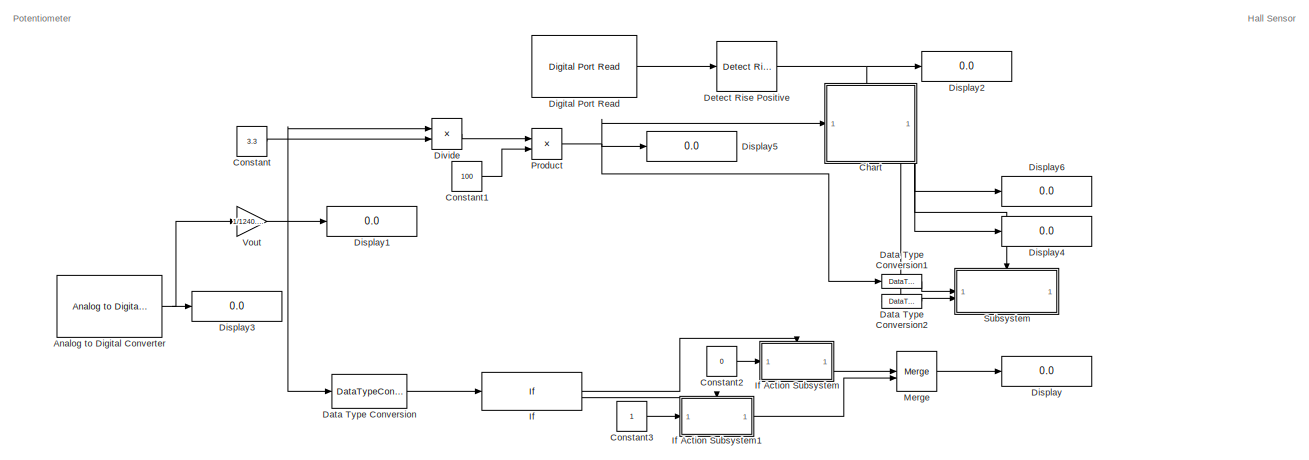
[diagram: root canvas - part 1/4, top left region]
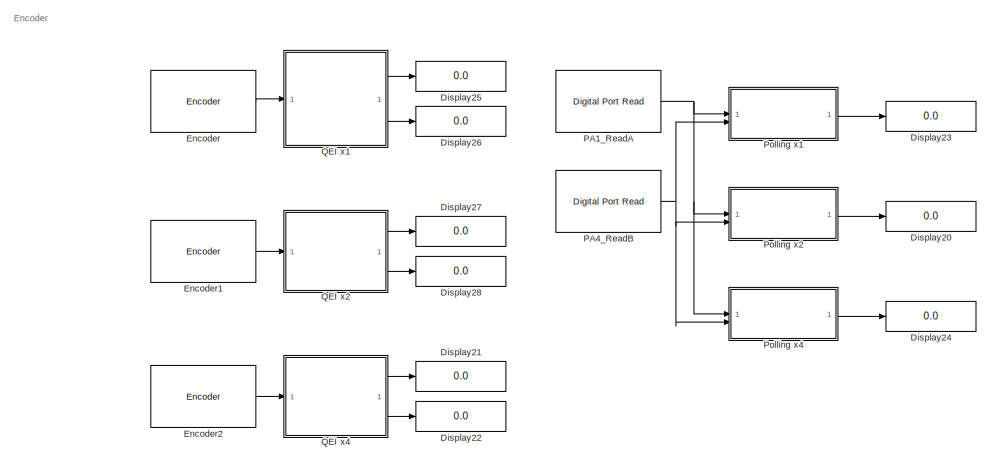
[diagram: root canvas - part 2/4, top right region]
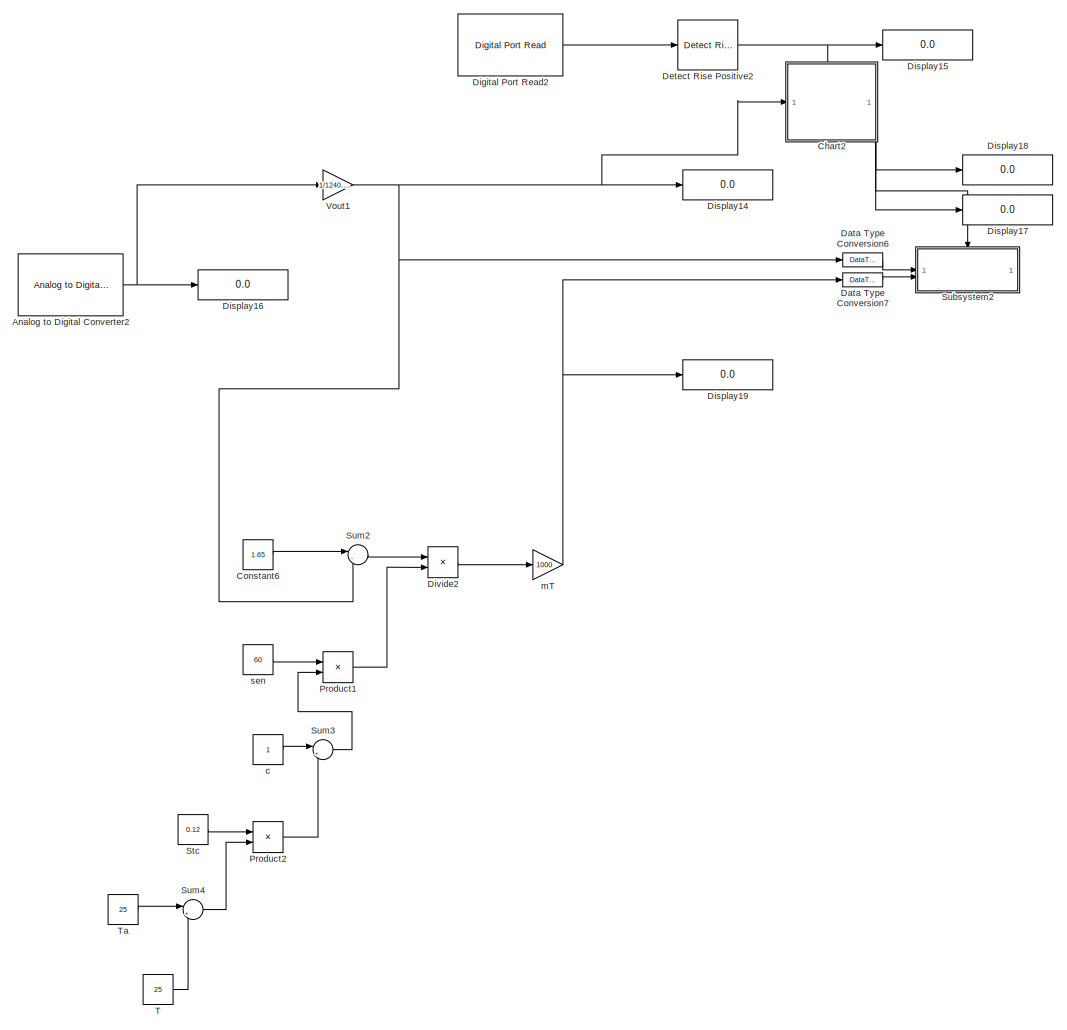
[diagram: root canvas - part 3/4, center side, full height]
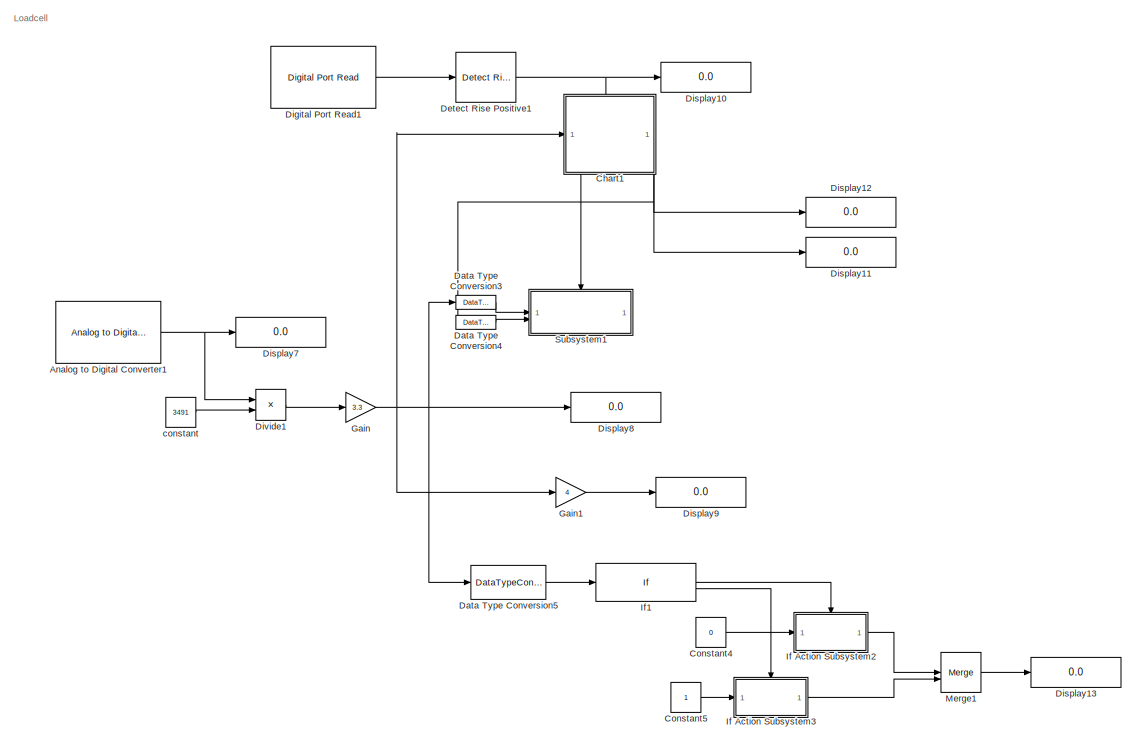
[diagram: root canvas - part 4/4, bottom left region]
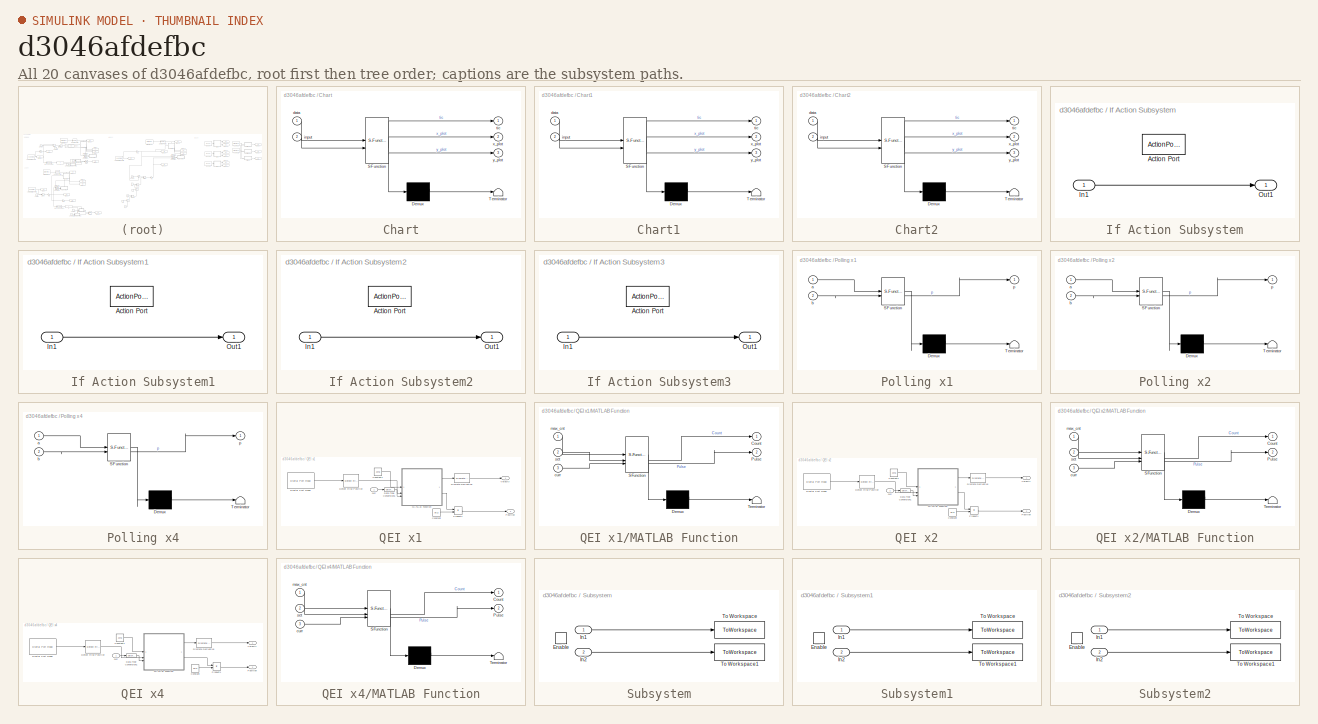
[diagram: thumbnail index - all 20 canvases of the model, root first then tree order]
MODEL slx_d3046afdefbc
KIND model
CONFIG AbsTol = auto
CONFIG EnableMultiTasking = on
CONFIG FixedStep = 0.001
CONFIG MaxStep = auto
CONFIG MinStep = auto
CONFIG RelTol = 1e-3
CONFIG SampleTimeConstraint = Unconstrained
CONFIG SolverName = FixedStepAuto
CONFIG StartTime = 0.0
CONFIG StopTime = inf
BLOCK [Reference] Analog to Digital Converter  REF=stm32f4xxblockslib/Analog to Digital Converter
  Commented = on
  LibrarySourceBlock = stm32g4xxblockslib/Analog to Digital Converter
  SourceBlock = stm32f4xxblockslib/Analog to Digital Converter
  SourceType = stm32cube.blocks.AnalogInput
BLOCK [Reference] Analog to Digital Converter1  REF=stm32f4xxblockslib/Analog to Digital Converter
  Commented = on
  LibrarySourceBlock = stm32g4xxblockslib/Analog to Digital Converter
  SourceBlock = stm32f4xxblockslib/Analog to Digital Converter
  SourceType = stm32cube.blocks.AnalogInput
BLOCK [Reference] Analog to Digital Converter2  REF=stm32f4xxblockslib/Analog to Digital Converter
  Commented = on
  LibrarySourceBlock = stm32g4xxblockslib/Analog to Digital Converter
  SourceBlock = stm32f4xxblockslib/Analog to Digital Converter
  SourceType = stm32cube.blocks.AnalogInput
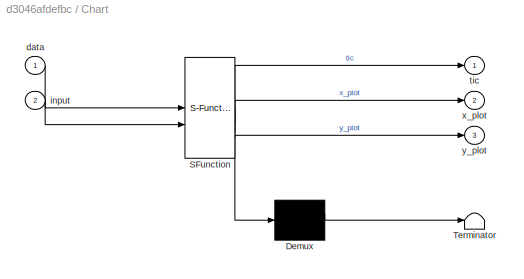
BLOCK [SubSystem] Chart
  Commented = on
  ErrorFcn = Stateflow.Translate.translate
  PermitHierarchicalResolution = ExplicitOnly
  PortSchema = {"entries":[{"content":{"sides":[{"content":{"connectorIds":["In1"]},"type":"ConnectorPlacement.EquallySpacedRectSide","uuid":"15421bba-938f-45a9-ad39-0fb1dc31f746"},{"content":{"side":"RIGHT"},"type":"ConnectorPlacement.EquallySpacedRectSide","uuid":"6df644a9-cb47-4d86-919b-b55e97b0d3b9"},{"content":{"connectorIds":["In2"],"side":"TOP"},"type":"ConnectorPlacement.EquallySpacedRectSide","uuid":"9f...<+385ch>  <repeated x3 — deduplicated; at blocks: Chart, Chart1, Chart2>
  SFBlockType = Chart
  TreatAsAtomicUnit = on
BLOCK [Demux] Chart/ Demux 
  Outputs = 1
BLOCK [S-Function] Chart/ SFunction 
  EnableBusSupport = on
  FunctionName = sf_sfun
  PortCounts = [2 4]
  SFcnIsStateOwnerBlock = off
  SFunctionDeploymentMode = off
  Tag = Stateflow S-Function 3
BLOCK [Terminator] Chart/ Terminator 
BLOCK [Inport] Chart/data
BLOCK [Inport] Chart/input
  Port = 2
BLOCK [Outport] Chart/tic
BLOCK [Outport] Chart/x_plot
  Port = 2
BLOCK [Outport] Chart/y_plot
  Port = 3
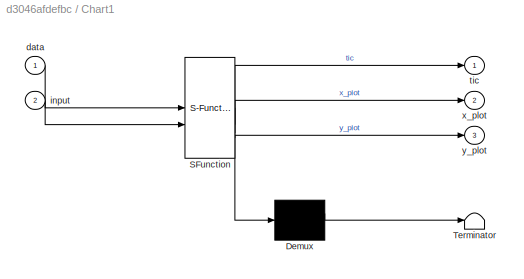
BLOCK [SubSystem] Chart1
  Commented = on
  ErrorFcn = Stateflow.Translate.translate
  PermitHierarchicalResolution = ExplicitOnly
  SFBlockType = Chart
  TreatAsAtomicUnit = on
BLOCK [Demux] Chart1/ Demux 
  Outputs = 1
BLOCK [S-Function] Chart1/ SFunction 
  EnableBusSupport = on
  FunctionName = sf_sfun
  PortCounts = [2 4]
  SFcnIsStateOwnerBlock = off
  SFunctionDeploymentMode = off
  Tag = Stateflow S-Function 1
BLOCK [Terminator] Chart1/ Terminator 
BLOCK [Inport] Chart1/data
BLOCK [Inport] Chart1/input
  Port = 2
BLOCK [Outport] Chart1/tic
BLOCK [Outport] Chart1/x_plot
  Port = 2
BLOCK [Outport] Chart1/y_plot
  Port = 3
BLOCK [SubSystem] Chart2
  Commented = on
  ErrorFcn = Stateflow.Translate.translate
  PermitHierarchicalResolution = ExplicitOnly
  SFBlockType = Chart
  TreatAsAtomicUnit = on
BLOCK [Demux] Chart2/ Demux 
  Outputs = 1
BLOCK [S-Function] Chart2/ SFunction 
  EnableBusSupport = on
  FunctionName = sf_sfun
  PortCounts = [2 4]
  SFcnIsStateOwnerBlock = off
  SFunctionDeploymentMode = off
  Tag = Stateflow S-Function 2
BLOCK [Terminator] Chart2/ Terminator 
BLOCK [Inport] Chart2/data
BLOCK [Inport] Chart2/input
  Port = 2
BLOCK [Outport] Chart2/tic
BLOCK [Outport] Chart2/x_plot
  Port = 2
BLOCK [Outport] Chart2/y_plot
  Port = 3
BLOCK [Constant] Constant
  Commented = on
  Value = 3.3
BLOCK [Constant] Constant1
  Commented = on
  Value = 100
BLOCK [Constant] Constant2
  Commented = on
  Value = 0
BLOCK [Constant] Constant3
  Commented = on
BLOCK [Constant] Constant4
  Commented = on
  Value = 0
BLOCK [Constant] Constant5
  Commented = on
BLOCK [Constant] Constant6
  Commented = on
  Value = 1.65
BLOCK [DataTypeConversion] Data Type Conversion
  Commented = on
  OutDataTypeStr = double
  RndMeth = Floor
  SaturateOnIntegerOverflow = off
BLOCK [DataTypeConversion] Data Type Conversion1
  Commented = on
  OutDataTypeStr = double
  RndMeth = Floor
  SaturateOnIntegerOverflow = off
BLOCK [DataTypeConversion] Data Type Conversion2
  Commented = on
  OutDataTypeStr = double
  RndMeth = Floor
  SaturateOnIntegerOverflow = off
BLOCK [DataTypeConversion] Data Type Conversion3
  Commented = on
  OutDataTypeStr = double
  RndMeth = Floor
  SaturateOnIntegerOverflow = off
BLOCK [DataTypeConversion] Data Type Conversion4
  Commented = on
  OutDataTypeStr = double
  RndMeth = Floor
  SaturateOnIntegerOverflow = off
BLOCK [DataTypeConversion] Data Type Conversion5
  Commented = on
  OutDataTypeStr = double
  RndMeth = Floor
  SaturateOnIntegerOverflow = off
BLOCK [DataTypeConversion] Data Type Conversion6
  Commented = on
  OutDataTypeStr = double
  RndMeth = Floor
  SaturateOnIntegerOverflow = off
BLOCK [DataTypeConversion] Data Type Conversion7
  Commented = on
  OutDataTypeStr = double
  RndMeth = Floor
  SaturateOnIntegerOverflow = off
BLOCK [Reference] Detect Rise Positive  REF=simulink/Logic and Bit
Operations/Detect Rise
Positive
  Commented = on
  SourceBlock = simulink/Logic and Bit\nOperations/Detect Rise\nPositive
  SourceType = Detect Rise Positive
BLOCK [Reference] Detect Rise Positive1  REF=simulink/Logic and Bit
Operations/Detect Rise
Positive
  Commented = on
  SourceBlock = simulink/Logic and Bit\nOperations/Detect Rise\nPositive
  SourceType = Detect Rise Positive
BLOCK [Reference] Detect Rise Positive2  REF=simulink/Logic and Bit
Operations/Detect Rise
Positive
  Commented = on
  SourceBlock = simulink/Logic and Bit\nOperations/Detect Rise\nPositive
  SourceType = Detect Rise Positive
BLOCK [Reference] Digital Port Read  REF=stm32f4xxblockslib/Digital Port Read
  Commented = on
  LibrarySourceBlock = stm32g4xxblockslib/Digital Port Read
  SourceBlock = stm32f4xxblockslib/Digital Port Read
  SourceType = stm32cube.blocks.DigitalPortRead
BLOCK [Reference] Digital Port Read1  REF=stm32f4xxblockslib/Digital Port Read
  Commented = on
  LibrarySourceBlock = stm32g4xxblockslib/Digital Port Read
  SourceBlock = stm32f4xxblockslib/Digital Port Read
  SourceType = stm32cube.blocks.DigitalPortRead
BLOCK [Reference] Digital Port Read2  REF=stm32f4xxblockslib/Digital Port Read
  Commented = on
  LibrarySourceBlock = stm32g4xxblockslib/Digital Port Read
  SourceBlock = stm32f4xxblockslib/Digital Port Read
  SourceType = stm32cube.blocks.DigitalPortRead
BLOCK [Display] Display
  Commented = on
  Decimation = 1
BLOCK [Display] Display1
  Commented = on
  Decimation = 1
BLOCK [Display] Display10
  Commented = on
  Decimation = 1
BLOCK [Display] Display11
  Commented = on
  Decimation = 1
BLOCK [Display] Display12
  Commented = on
  Decimation = 1
BLOCK [Display] Display13
  Commented = on
  Decimation = 1
BLOCK [Display] Display14
  Commented = on
  Decimation = 1
BLOCK [Display] Display15
  Commented = on
  Decimation = 1
BLOCK [Display] Display16
  Commented = on
  Decimation = 1
BLOCK [Display] Display17
  Commented = on
  Decimation = 1
BLOCK [Display] Display18
  Commented = on
  Decimation = 1
BLOCK [Display] Display19
  Commented = on
  Decimation = 1
BLOCK [Display] Display2
  Commented = on
  Decimation = 1
BLOCK [Display] Display20
  Decimation = 1
BLOCK [Display] Display21
  Decimation = 1
BLOCK [Display] Display22
  Decimation = 1
BLOCK [Display] Display23
  Decimation = 1
BLOCK [Display] Display24
  Decimation = 1
BLOCK [Display] Display25
  Decimation = 1
BLOCK [Display] Display26
  Decimation = 1
BLOCK [Display] Display27
  Decimation = 1
BLOCK [Display] Display28
  Decimation = 1
BLOCK [Display] Display3
  Commented = on
  Decimation = 1
BLOCK [Display] Display4
  Commented = on
  Decimation = 1
BLOCK [Display] Display5
  Commented = on
  Decimation = 1
BLOCK [Display] Display6
  Commented = on
  Decimation = 1
BLOCK [Display] Display7
  Commented = on
  Decimation = 1
BLOCK [Display] Display8
  Commented = on
  Decimation = 1
BLOCK [Display] Display9
  Commented = on
  Decimation = 1
BLOCK [Product] Divide
  Commented = on
  Inputs = */
BLOCK [Product] Divide1
  Commented = on
  Inputs = */
BLOCK [Product] Divide2
  Commented = on
  Inputs = */
BLOCK [Reference] Encoder  REF=stm32g4xxblockslib/Encoder
  SourceBlock = stm32g4xxblockslib/Encoder
  SourceType = stm32cube.blocks.EncoderBlockForG4
BLOCK [Reference] Encoder1  REF=stm32g4xxblockslib/Encoder
  SourceBlock = stm32g4xxblockslib/Encoder
  SourceType = stm32cube.blocks.EncoderBlockForG4
BLOCK [Reference] Encoder2  REF=stm32g4xxblockslib/Encoder
  SourceBlock = stm32g4xxblockslib/Encoder
  SourceType = stm32cube.blocks.EncoderBlockForG4
BLOCK [Gain] Gain
  Commented = on
  Gain = 3.3
BLOCK [Gain] Gain1
  Commented = on
  Gain = 4
BLOCK [If] If
  Commented = on
  ElseIfExpressions = u1 >= 1.65
  IfExpression = u1 < 1.65
BLOCK [SubSystem] If Action Subsystem
  Commented = on
  TreatAsAtomicUnit = on
BLOCK [ActionPort] If Action Subsystem/Action Port
  ActionPortLabel = if(u1 < 1.65)
BLOCK [Inport] If Action Subsystem/In1
BLOCK [Outport] If Action Subsystem/Out1
BLOCK [SubSystem] If Action Subsystem1
  Commented = on
  TreatAsAtomicUnit = on
BLOCK [ActionPort] If Action Subsystem1/Action Port
  ActionPortLabel = elseif(u1 >= 1.65)
BLOCK [Inport] If Action Subsystem1/In1
BLOCK [Outport] If Action Subsystem1/Out1
BLOCK [SubSystem] If Action Subsystem2
  Commented = on
  TreatAsAtomicUnit = on
BLOCK [ActionPort] If Action Subsystem2/Action Port
  ActionPortLabel = if(u1 < 1.65)
BLOCK [Inport] If Action Subsystem2/In1
BLOCK [Outport] If Action Subsystem2/Out1
BLOCK [SubSystem] If Action Subsystem3
  Commented = on
  TreatAsAtomicUnit = on
BLOCK [ActionPort] If Action Subsystem3/Action Port
  ActionPortLabel = elseif(u1 >= 1.65)
BLOCK [Inport] If Action Subsystem3/In1
BLOCK [Outport] If Action Subsystem3/Out1
BLOCK [If] If1
  Commented = on
  ElseIfExpressions = u1 >= 1.65
  IfExpression = u1 < 1.65
BLOCK [Merge] Merge
  Commented = on
BLOCK [Merge] Merge1
  Commented = on
BLOCK [Reference] PA1_ReadA  REF=stm32f4xxblockslib/Digital Port Read
  LibrarySourceBlock = stm32g4xxblockslib/Digital Port Read
  SourceBlock = stm32f4xxblockslib/Digital Port Read
  SourceType = stm32cube.blocks.DigitalPortRead
BLOCK [Reference] PA4_ReadB  REF=stm32f4xxblockslib/Digital Port Read
  LibrarySourceBlock = stm32g4xxblockslib/Digital Port Read
  SourceBlock = stm32f4xxblockslib/Digital Port Read
  SourceType = stm32cube.blocks.DigitalPortRead
BLOCK [SubSystem] Polling x1
  ErrorFcn = Stateflow.Translate.translate
  PermitHierarchicalResolution = ExplicitOnly
  SFBlockType = MATLAB Function
  TreatAsAtomicUnit = on
BLOCK [Demux] Polling x1/ Demux 
  Outputs = 1
BLOCK [S-Function] Polling x1/ SFunction 
  EnableBusSupport = on
  FunctionName = sf_sfun
  PortCounts = [2 2]
  SFcnIsStateOwnerBlock = off
  SFunctionDeploymentMode = off
  Tag = Stateflow S-Function 4
BLOCK [Terminator] Polling x1/ Terminator 
BLOCK [Inport] Polling x1/a
BLOCK [Inport] Polling x1/b
  Port = 2
BLOCK [Outport] Polling x1/p
BLOCK [SubSystem] Polling x2
  ErrorFcn = Stateflow.Translate.translate
  PermitHierarchicalResolution = ExplicitOnly
  SFBlockType = MATLAB Function
  TreatAsAtomicUnit = on
BLOCK [Demux] Polling x2/ Demux 
  Outputs = 1
BLOCK [S-Function] Polling x2/ SFunction 
  EnableBusSupport = on
  FunctionName = sf_sfun
  PortCounts = [2 2]
  SFcnIsStateOwnerBlock = off
  SFunctionDeploymentMode = off
  Tag = Stateflow S-Function 5
BLOCK [Terminator] Polling x2/ Terminator 
BLOCK [Inport] Polling x2/a
BLOCK [Inport] Polling x2/b
  Port = 2
BLOCK [Outport] Polling x2/p
BLOCK [SubSystem] Polling x4
  ErrorFcn = Stateflow.Translate.translate
  PermitHierarchicalResolution = ExplicitOnly
  SFBlockType = MATLAB Function
  TreatAsAtomicUnit = on
BLOCK [Demux] Polling x4/ Demux 
  Outputs = 1
BLOCK [S-Function] Polling x4/ SFunction 
  EnableBusSupport = on
  FunctionName = sf_sfun
  PortCounts = [2 2]
  SFcnIsStateOwnerBlock = off
  SFunctionDeploymentMode = off
  Tag = Stateflow S-Function 6
BLOCK [Terminator] Polling x4/ Terminator 
BLOCK [Inport] Polling x4/a
BLOCK [Inport] Polling x4/b
  Port = 2
BLOCK [Outport] Polling x4/p
BLOCK [Product] Product
  Commented = on
BLOCK [Product] Product1
  Commented = on
BLOCK [Product] Product2
  Commented = on
BLOCK [SubSystem] QEI x1
BLOCK [Constant] QEI x1/Constant
  Value = pi/12
BLOCK [Constant] QEI x1/Constant1
  Value = 2048
BLOCK [DataTypeConversion] QEI x1/Data Type Conversion1
  OutDataTypeStr = double
  RndMeth = Floor
  SaturateOnIntegerOverflow = off
BLOCK [Reference] QEI x1/Detect Rise Positive  REF=simulink/Logic and Bit
Operations/Detect Rise
Positive
  SourceBlock = simulink/Logic and Bit\nOperations/Detect Rise\nPositive
  SourceType = Detect Rise Positive
BLOCK [Reference] QEI x1/Digital Port Read  REF=stm32f4xxblockslib/Digital Port Read
  LibrarySourceBlock = stm32g4xxblockslib/Digital Port Read
  SourceBlock = stm32f4xxblockslib/Digital Port Read
  SourceType = stm32cube.blocks.DigitalPortRead
BLOCK [Reference] QEI x1/Discrete Derivative  REF=simulink/Discrete/Discrete Derivative
  SourceBlock = simulink/Discrete/Discrete Derivative
  SourceType = Discrete Derivative
BLOCK [SubSystem] QEI x1/MATLAB Function
  ErrorFcn = Stateflow.Translate.translate
  PermitHierarchicalResolution = ExplicitOnly
  SFBlockType = MATLAB Function
  TreatAsAtomicUnit = on
BLOCK [Demux] QEI x1/MATLAB Function/ Demux 
  Outputs = 1
BLOCK [S-Function] QEI x1/MATLAB Function/ SFunction 
  EnableBusSupport = on
  FunctionName = sf_sfun
  PortCounts = [3 3]
  SFcnIsStateOwnerBlock = off
  SFunctionDeploymentMode = off
  Tag = Stateflow S-Function 7
BLOCK [Terminator] QEI x1/MATLAB Function/ Terminator 
BLOCK [Outport] QEI x1/MATLAB Function/Count
BLOCK [Outport] QEI x1/MATLAB Function/Pulse
  Port = 2
BLOCK [Inport] QEI x1/MATLAB Function/curr
  Port = 3
BLOCK [Inport] QEI x1/MATLAB Function/max_cnt
BLOCK [Inport] QEI x1/MATLAB Function/set
  Port = 2
BLOCK [Outport] QEI x1/Position
  Port = 2
BLOCK [Product] QEI x1/Product1
BLOCK [Outport] QEI x1/Velocity
BLOCK [Inport] QEI x1/curr
BLOCK [SubSystem] QEI x2
BLOCK [Constant] QEI x2/Constant
  Value = pi/12
BLOCK [Constant] QEI x2/Constant1
  Value = 2048
BLOCK [DataTypeConversion] QEI x2/Data Type Conversion1
  OutDataTypeStr = double
  RndMeth = Floor
  SaturateOnIntegerOverflow = off
BLOCK [Reference] QEI x2/Detect Rise Positive  REF=simulink/Logic and Bit
Operations/Detect Rise
Positive
  SourceBlock = simulink/Logic and Bit\nOperations/Detect Rise\nPositive
  SourceType = Detect Rise Positive
BLOCK [Reference] QEI x2/Digital Port Read  REF=stm32f4xxblockslib/Digital Port Read
  SourceBlock = stm32f4xxblockslib/Digital Port Read
  SourceType = stm32cube.blocks.DigitalPortRead
BLOCK [Reference] QEI x2/Discrete Derivative  REF=simulink/Discrete/Discrete Derivative
  SourceBlock = simulink/Discrete/Discrete Derivative
  SourceType = Discrete Derivative
BLOCK [SubSystem] QEI x2/MATLAB Function
  ErrorFcn = Stateflow.Translate.translate
  PermitHierarchicalResolution = ExplicitOnly
  SFBlockType = MATLAB Function
  TreatAsAtomicUnit = on
BLOCK [Demux] QEI x2/MATLAB Function/ Demux 
  Outputs = 1
BLOCK [S-Function] QEI x2/MATLAB Function/ SFunction 
  EnableBusSupport = on
  FunctionName = sf_sfun
  PortCounts = [3 3]
  SFcnIsStateOwnerBlock = off
  SFunctionDeploymentMode = off
  Tag = Stateflow S-Function 8
BLOCK [Terminator] QEI x2/MATLAB Function/ Terminator 
BLOCK [Outport] QEI x2/MATLAB Function/Count
BLOCK [Outport] QEI x2/MATLAB Function/Pulse
  Port = 2
BLOCK [Inport] QEI x2/MATLAB Function/curr
  Port = 3
BLOCK [Inport] QEI x2/MATLAB Function/max_cnt
BLOCK [Inport] QEI x2/MATLAB Function/set
  Port = 2
BLOCK [Outport] QEI x2/Position
  Port = 2
BLOCK [Product] QEI x2/Product1
BLOCK [Outport] QEI x2/Velocity
BLOCK [Inport] QEI x2/curr
BLOCK [SubSystem] QEI x4
BLOCK [Constant] QEI x4/Constant
  Value = pi/12
BLOCK [Constant] QEI x4/Constant1
  Value = 2048
BLOCK [DataTypeConversion] QEI x4/Data Type Conversion1
  OutDataTypeStr = double
  RndMeth = Floor
  SaturateOnIntegerOverflow = off
BLOCK [Reference] QEI x4/Detect Rise Positive  REF=simulink/Logic and Bit
Operations/Detect Rise
Positive
  SourceBlock = simulink/Logic and Bit\nOperations/Detect Rise\nPositive
  SourceType = Detect Rise Positive
BLOCK [Reference] QEI x4/Digital Port Read  REF=stm32f4xxblockslib/Digital Port Read
  SourceBlock = stm32f4xxblockslib/Digital Port Read
  SourceType = stm32cube.blocks.DigitalPortRead
BLOCK [Reference] QEI x4/Discrete Derivative  REF=simulink/Discrete/Discrete Derivative
  SourceBlock = simulink/Discrete/Discrete Derivative
  SourceType = Discrete Derivative
BLOCK [SubSystem] QEI x4/MATLAB Function
  ErrorFcn = Stateflow.Translate.translate
  PermitHierarchicalResolution = ExplicitOnly
  SFBlockType = MATLAB Function
  TreatAsAtomicUnit = on
BLOCK [Demux] QEI x4/MATLAB Function/ Demux 
  Outputs = 1
BLOCK [S-Function] QEI x4/MATLAB Function/ SFunction 
  EnableBusSupport = on
  FunctionName = sf_sfun
  PortCounts = [3 3]
  SFcnIsStateOwnerBlock = off
  SFunctionDeploymentMode = off
  Tag = Stateflow S-Function 9
BLOCK [Terminator] QEI x4/MATLAB Function/ Terminator 
BLOCK [Outport] QEI x4/MATLAB Function/Count
BLOCK [Outport] QEI x4/MATLAB Function/Pulse
  Port = 2
BLOCK [Inport] QEI x4/MATLAB Function/curr
  Port = 3
BLOCK [Inport] QEI x4/MATLAB Function/max_cnt
BLOCK [Inport] QEI x4/MATLAB Function/set
  Port = 2
BLOCK [Outport] QEI x4/Position
  Port = 2
BLOCK [Product] QEI x4/Product1
BLOCK [Outport] QEI x4/Velocity
BLOCK [Inport] QEI x4/curr
BLOCK [Constant] Stc
  Commented = on
  Value = 0.12
BLOCK [SubSystem] Subsystem
  Commented = on
BLOCK [EnablePort] Subsystem/Enable
BLOCK [Inport] Subsystem/In1
BLOCK [Inport] Subsystem/In2
  Port = 2
BLOCK [ToWorkspace] Subsystem/To Workspace
  FixptAsFi = on
  MaxDataPoints = inf
  SampleTime = -1
  Save2DSignal = 2-D array (concatenate along first dimension)
  VariableName = simout1
BLOCK [ToWorkspace] Subsystem/To Workspace1
  FixptAsFi = on
  MaxDataPoints = inf
  SampleTime = -1
  Save2DSignal = 2-D array (concatenate along first dimension)
  VariableName = simout2
BLOCK [SubSystem] Subsystem1
  Commented = on
BLOCK [EnablePort] Subsystem1/Enable
BLOCK [Inport] Subsystem1/In1
BLOCK [Inport] Subsystem1/In2
  Port = 2
BLOCK [ToWorkspace] Subsystem1/To Workspace
  FixptAsFi = on
  MaxDataPoints = inf
  SampleTime = -1
  Save2DSignal = 2-D array (concatenate along first dimension)
  VariableName = simout1
BLOCK [ToWorkspace] Subsystem1/To Workspace1
  FixptAsFi = on
  MaxDataPoints = inf
  SampleTime = -1
  Save2DSignal = 2-D array (concatenate along first dimension)
  VariableName = simout2
BLOCK [SubSystem] Subsystem2
  Commented = on
BLOCK [EnablePort] Subsystem2/Enable
BLOCK [Inport] Subsystem2/In1
BLOCK [Inport] Subsystem2/In2
  Port = 2
BLOCK [ToWorkspace] Subsystem2/To Workspace
  FixptAsFi = on
  MaxDataPoints = inf
  SampleTime = -1
  Save2DSignal = 2-D array (concatenate along first dimension)
  VariableName = simout1
BLOCK [ToWorkspace] Subsystem2/To Workspace1
  FixptAsFi = on
  MaxDataPoints = inf
  SampleTime = -1
  Save2DSignal = 2-D array (concatenate along first dimension)
  VariableName = simout2
BLOCK [Sum] Sum2
  Commented = on
  Inputs = |-+
BLOCK [Sum] Sum3
  Commented = on
  Inputs = |++
BLOCK [Sum] Sum4
  Commented = on
  Inputs = |+-
BLOCK [Constant] T
  Commented = on
  Value = 25
BLOCK [Constant] Ta
  Commented = on
  Value = 25
BLOCK [Gain] Vout
  Commented = on
  Gain = 1/1240.909
BLOCK [Gain] Vout1
  Commented = on
  Gain = 1/1240.909
BLOCK [Constant] c
  Commented = on
BLOCK [Constant] constant
  Commented = on
  Value = 3491
BLOCK [Gain] mT
  Commented = on
  Gain = 1000
BLOCK [Constant] sen
  Commented = on
  Value = 60
ANNOTATION (root): Encoder
ANNOTATION (root): Hall Sensor
ANNOTATION (root): Loadcell
ANNOTATION (root): Potentiometer
NET Analog to Digital Converter1:1 -> Display7:1, Divide1:1
NET Analog to Digital Converter2:1 -> Display16:1, Vout1:1
NET Analog to Digital Converter:1 -> Display3:1, Vout:1
LINE Chart1:1 -> Subsystem1:enable
NET Chart1:2 -> Data Type Conversion4:1, Display11:1
LINE Chart1:3 -> Display12:1
LINE Chart2:1 -> Subsystem2:enable
LINE Chart2:2 -> Display17:1
LINE Chart2:3 -> Display18:1
LINE Chart:1 -> Subsystem:enable
NET Chart:2 -> Data Type Conversion2:1, Display4:1
LINE Chart:3 -> Display6:1
LINE Constant1:1 -> Product:2
LINE Constant2:1 -> If Action Subsystem:1
LINE Constant3:1 -> If Action Subsystem1:1
LINE Constant4:1 -> If Action Subsystem2:1
LINE Constant5:1 -> If Action Subsystem3:1
LINE Constant6:1 -> Sum2:1
LINE Constant:1 -> Divide:2
LINE Data Type Conversion1:1 -> Subsystem:1
LINE Data Type Conversion2:1 -> Subsystem:2
LINE Data Type Conversion3:1 -> Subsystem1:1
LINE Data Type Conversion4:1 -> Subsystem1:2
LINE Data Type Conversion5:1 -> If1:1
LINE Data Type Conversion6:1 -> Subsystem2:1
LINE Data Type Conversion7:1 -> Subsystem2:2
LINE Data Type Conversion:1 -> If:1
NET Detect Rise Positive1:1 -> Chart1:2, Display10:1
NET Detect Rise Positive2:1 -> Chart2:2, Display15:1
NET Detect Rise Positive:1 -> Chart:2, Display2:1
LINE Digital Port Read1:1 -> Detect Rise Positive1:1
LINE Digital Port Read2:1 -> Detect Rise Positive2:1
LINE Digital Port Read:1 -> Detect Rise Positive:1
LINE Divide1:1 -> Gain:1
LINE Divide2:1 -> mT:1
LINE Divide:1 -> Product:1
LINE Encoder1:1 -> QEI x2:1
LINE Encoder2:1 -> QEI x4:1
LINE Encoder:1 -> QEI x1:1
LINE Gain1:1 -> Display9:1
NET Gain:1 -> Chart1:1, Data Type Conversion3:1, Data Type Conversion5:1, Display8:1, Gain1:1
LINE If Action Subsystem/In1:1 -> If Action Subsystem/Out1:1
LINE If Action Subsystem1/In1:1 -> If Action Subsystem1/Out1:1
LINE If Action Subsystem1:1 -> Merge:2
LINE If Action Subsystem2/In1:1 -> If Action Subsystem2/Out1:1
LINE If Action Subsystem2:1 -> Merge1:1
LINE If Action Subsystem3/In1:1 -> If Action Subsystem3/Out1:1
LINE If Action Subsystem3:1 -> Merge1:2
LINE If Action Subsystem:1 -> Merge:1
LINE If1:1 -> If Action Subsystem2:ifaction
LINE If1:2 -> If Action Subsystem3:ifaction
LINE If:1 -> If Action Subsystem:ifaction
LINE If:2 -> If Action Subsystem1:ifaction
LINE Merge1:1 -> Display13:1
LINE Merge:1 -> Display:1
NET PA1_ReadA:1 -> Polling x1:1, Polling x2:1, Polling x4:1
NET PA4_ReadB:1 -> Polling x1:2, Polling x2:2, Polling x4:2
LINE Polling x1:1 -> Display23:1
LINE Polling x2:1 -> Display20:1
LINE Polling x4:1 -> Display24:1
LINE Product1:1 -> Divide2:2
LINE Product2:1 -> Sum3:2
NET Product:1 -> Chart:1, Data Type Conversion1:1, Display5:1
LINE QEI x1/Constant1:1 -> QEI x1/MATLAB Function:1
LINE QEI x1/Constant:1 -> QEI x1/Product1:2
LINE QEI x1/Data Type Conversion1:1 -> QEI x1/MATLAB Function:3
LINE QEI x1/Detect Rise Positive:1 -> QEI x1/MATLAB Function:2
LINE QEI x1/Digital Port Read:1 -> QEI x1/Detect Rise Positive:1
LINE QEI x1/Discrete Derivative:1 -> QEI x1/Velocity:1
LINE QEI x1/MATLAB Function:1 -> QEI x1/Discrete Derivative:1
LINE QEI x1/MATLAB Function:2 -> QEI x1/Product1:1
LINE QEI x1/Product1:1 -> QEI x1/Position:1
LINE QEI x1/curr:1 -> QEI x1/Data Type Conversion1:1
LINE QEI x1:1 -> Display25:1
LINE QEI x1:2 -> Display26:1
LINE QEI x2/Constant1:1 -> QEI x2/MATLAB Function:1
LINE QEI x2/Constant:1 -> QEI x2/Product1:2
LINE QEI x2/Data Type Conversion1:1 -> QEI x2/MATLAB Function:3
LINE QEI x2/Detect Rise Positive:1 -> QEI x2/MATLAB Function:2
LINE QEI x2/Digital Port Read:1 -> QEI x2/Detect Rise Positive:1
LINE QEI x2/Discrete Derivative:1 -> QEI x2/Velocity:1
LINE QEI x2/MATLAB Function:1 -> QEI x2/Discrete Derivative:1
LINE QEI x2/MATLAB Function:2 -> QEI x2/Product1:1
LINE QEI x2/Product1:1 -> QEI x2/Position:1
LINE QEI x2/curr:1 -> QEI x2/Data Type Conversion1:1
LINE QEI x2:1 -> Display27:1
LINE QEI x2:2 -> Display28:1
LINE QEI x4/Constant1:1 -> QEI x4/MATLAB Function:1
LINE QEI x4/Constant:1 -> QEI x4/Product1:2
LINE QEI x4/Data Type Conversion1:1 -> QEI x4/MATLAB Function:3
LINE QEI x4/Detect Rise Positive:1 -> QEI x4/MATLAB Function:2
LINE QEI x4/Digital Port Read:1 -> QEI x4/Detect Rise Positive:1
LINE QEI x4/Discrete Derivative:1 -> QEI x4/Velocity:1
LINE QEI x4/MATLAB Function:1 -> QEI x4/Discrete Derivative:1
LINE QEI x4/MATLAB Function:2 -> QEI x4/Product1:1
LINE QEI x4/Product1:1 -> QEI x4/Position:1
LINE QEI x4/curr:1 -> QEI x4/Data Type Conversion1:1
LINE QEI x4:1 -> Display21:1
LINE QEI x4:2 -> Display22:1
LINE Stc:1 -> Product2:1
LINE Subsystem/In1:1 -> Subsystem/To Workspace:1
LINE Subsystem/In2:1 -> Subsystem/To Workspace1:1
LINE Subsystem1/In1:1 -> Subsystem1/To Workspace:1
LINE Subsystem1/In2:1 -> Subsystem1/To Workspace1:1
LINE Subsystem2/In1:1 -> Subsystem2/To Workspace:1
LINE Subsystem2/In2:1 -> Subsystem2/To Workspace1:1
LINE Sum2:1 -> Divide2:1
LINE Sum3:1 -> Product1:2
LINE Sum4:1 -> Product2:2
LINE T:1 -> Sum4:2
LINE Ta:1 -> Sum4:1
NET Vout1:1 -> Chart2:1, Data Type Conversion6:1, Display14:1, Sum2:2
NET Vout:1 -> Data Type Conversion:1, Display1:1, Divide:1
LINE c:1 -> Sum3:1
LINE constant:1 -> Divide1:2
NET mT:1 -> Data Type Conversion7:1, Display19:1
LINE sen:1 -> Product1:1
note: NET lines group one-source signal fan-out (src -> all destinations, sorted); 1:1 wires keep LINE
CHART QEI x2/MATLAB Function states=1 transitions=1
  STATE_LABEL 'eML_blk_kernel()'
  STATE_LABEL 'SCRIPT:\nfunction [Count,Pulse] = fcn(max_cnt,set,curr)\n    persistent prev;\n    persistent homing;\n    persistent pos;\n\n    if isempty(prev)\n        prev = curr;\n        homing = 0;\n        pos = 0;\n    end\n\n    delta = curr - prev;\n\n    if delta <= -1*(max_cnt/2)\n        delta = delta + max_cnt + 1;\n    elseif delta >= max_cnt/2\n        delta = delta -max_cnt - 1;\n    end\n\n    if set\n        homi...<+110ch>'  <repeated x3 — deduplicated; at blocks: MATLAB Function>
CHART QEI x4/MATLAB Function states=1 transitions=1
  STATE_LABEL 'eML_blk_kernel()'
CHART Chart1 states=3 transitions=4
  STATE_LABEL 'setup\nloop = 0;\ntic = 0;\nx_plot = 0;\ny_plot = 0;'
  STATE_LABEL 'set\nloop = 0;'
  STATE_LABEL 'loop1\nentry:\ntic = 1;\nduring:\nloop = loop + 0.001;\nexit:\ntic = 0;\nx_plot = x_plot + 1\ny_plot = data'
CHART Chart2 states=3 transitions=4
  STATE_LABEL 'setup\nloop = 0;\ntic = 0;\nx_plot = 0;\ny_plot = 0;'
  STATE_LABEL 'set\nloop = 0;'
  STATE_LABEL 'loop1\nentry:\ntic = 1;\nduring:\nloop = loop + 0.001;\nexit:\ntic = 0;\nx_plot = x_plot + 2.77778\ny_plot = data'
CHART Chart states=3 transitions=4
  STATE_LABEL 'setup\nloop = 0;\ntic = 0;\nx_plot = 0;\ny_plot = 0;'
  STATE_LABEL 'set\nloop = 0;'
  STATE_LABEL 'loop1\nentry:\ntic = 1;\nduring:\nloop = loop + 0.001;\nexit:\ntic = 0;\nx_plot = x_plot + 10\ny_plot = data'
CHART Polling x1 states=1 transitions=1
  STATE_LABEL 'eML_blk_kernel()'
  STATE_LABEL 'SCRIPT:\nfunction p = fcn(a,b)\n    persistent pos;\n    persistent trig;\n    if isempty(trig)\n        trig = 1;\n        pos = 0;\n    end\n    if a-b == -1 && trig\n        pos = pos + 1;\n        trig = 0;\n    elseif a-b == 1 && trig\n        pos = pos -1;\n        trig = 0;\n    end\n\n    if a == 1 && b == 1\n        trig = 1;\n    end\n    p = pos;\nend\n'
CHART Polling x2 states=1 transitions=1
  STATE_LABEL 'eML_blk_kernel()'
  STATE_LABEL 'SCRIPT:\nfunction p = fcn(a,b)\n    persistent pos;\n    persistent trig;\n    if isempty(trig)\n        trig = 1;\n        pos = 0;\n    end\n    if a-b == -1 && trig\n        pos = pos + 1;\n        trig = 2;\n    elseif a-b == 1 && trig\n        pos = pos -1;\n        trig = 2;\n    end\n\n    if a == 0 && b == 0 \n        trig = 0;\n    end\n\n    if a-b == 1 && trig == 0\n        pos = pos + 1;\n        trig = -1;...<+151ch>'
CHART Polling x4 states=1 transitions=1
  STATE_LABEL 'eML_blk_kernel()'
  STATE_LABEL 'SCRIPT:\nfunction p = fcn(a,b)\n    persistent pos;\n    persistent trigA;\n    persistent trigB;\n    if isempty(trigA)\n        trigA = 1;\n        trigB = 1;\n        pos = 0;\n    end\n    if a-b == -1 && trigA\n        pos = pos + 1;\n        trigA = 2;\n    elseif a-b == 1 && trigA\n        pos = pos -1;\n        trigA = 2;\n    end\n\n\n    if a-b == -1 && trigA == 0\n        pos = pos + 1;\n        trigA = -1;...<+553ch>'
CHART QEI x1/MATLAB Function states=1 transitions=1
  STATE_LABEL 'eML_blk_kernel()'
CHART  states=0 transitions=0
CHART  states=0 transitions=0
CHART  states=0 transitions=0
CHART  states=0 transitions=0
CHART  states=0 transitions=0
CHART  states=0 transitions=0
CHART  states=0 transitions=0
CHART  states=0 transitions=0
CHART  states=0 transitions=0
